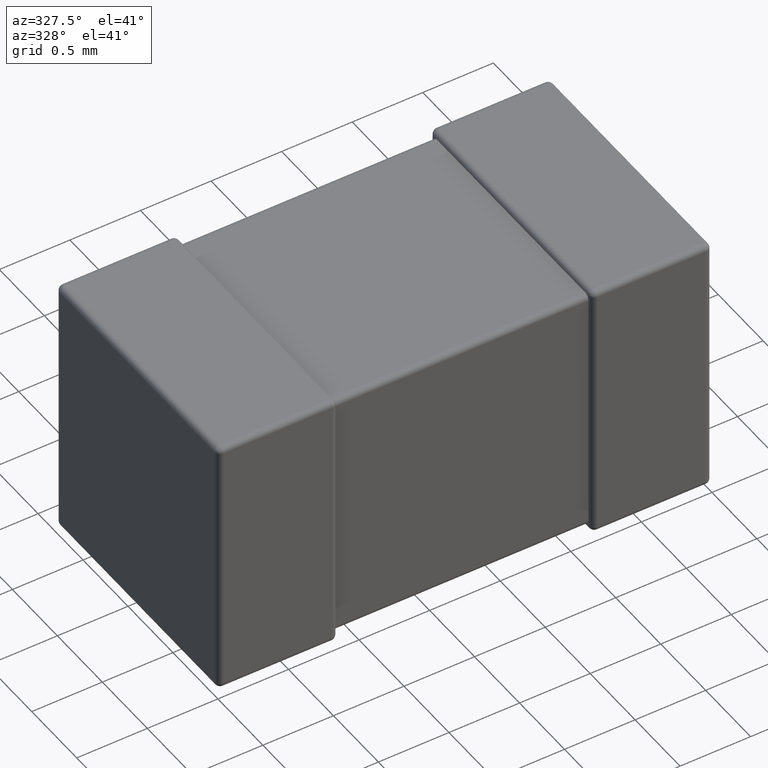
[diagram: clean part render]
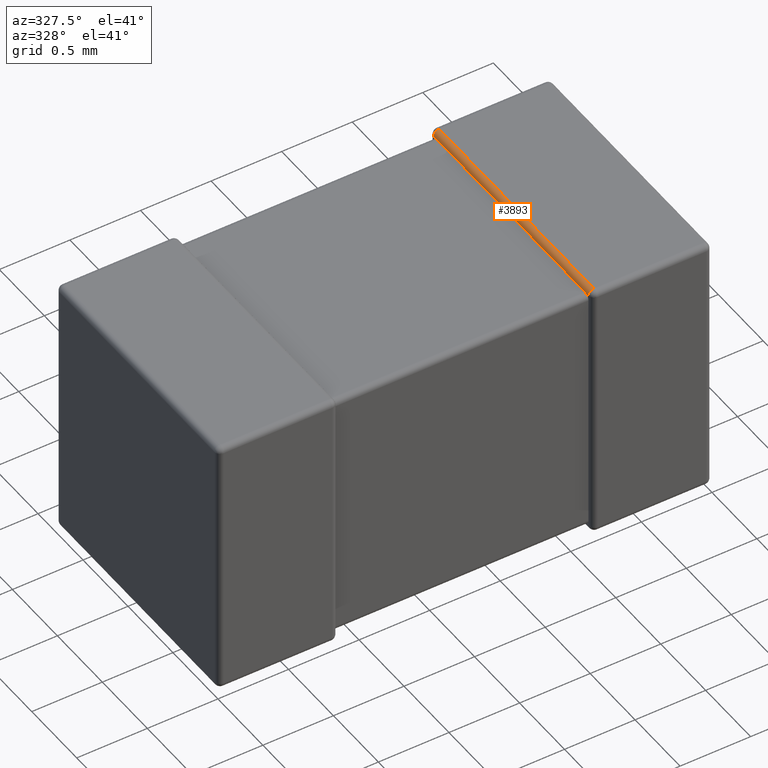
[diagram: same view with one face highlighted and labeled with its STEP entity id]
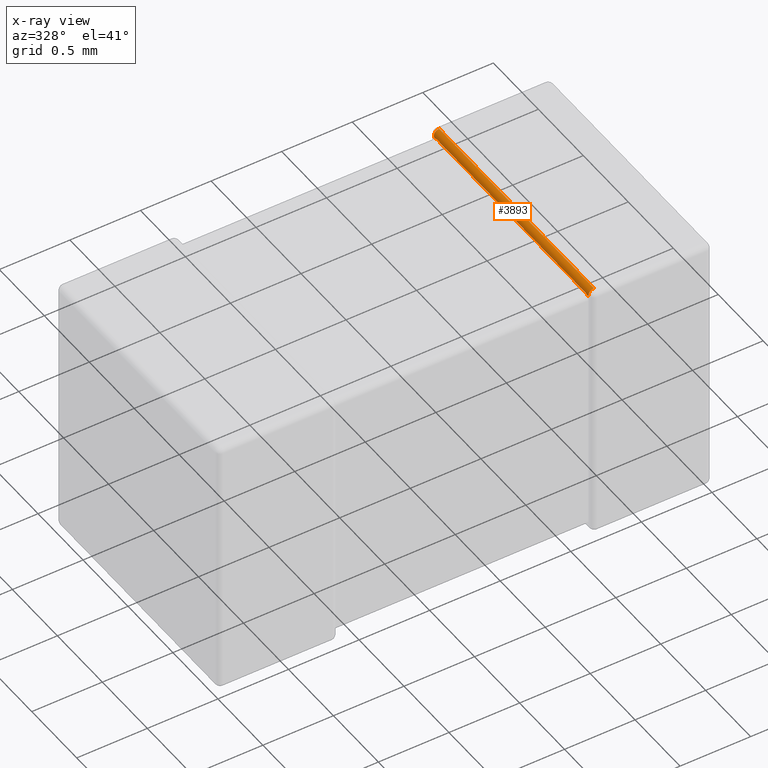
[diagram: x-ray of the same camera — body ghosted, the highlighted face saturated]
A machine part, auxiliary view. The second image highlights one B-rep face of the part: STEP entity #3893.
The next image is the same camera in x-ray: the body ghosted, the highlighted face saturated — about 0% of this face is hidden behind the body in this view.
In plain terms, the highlighted cylindrical surface (edge-blend (fillet) strip) has radius 0.0395 mm, axis along (-0, 1, 0).
Its self-contained STEP definition (entity closure, byte-faithful):
#166 = CARTESIAN_POINT ( 'NONE',  ( 2.650000000000000400, 0.07903999999999988800, -0.03951999999999991600 ) ) ;
#178 = EDGE_CURVE ( 'NONE', #1669, #402, #2656, .T. ) ;
#368 = EDGE_CURVE ( 'NONE', #4182, #527, #3213, .T. ) ;
#402 = VERTEX_POINT ( 'NONE', #546 ) ;
#527 = VERTEX_POINT ( 'NONE', #1684 ) ;
#529 = EDGE_CURVE ( 'NONE', #1669, #774, #3092, .T. ) ;
#546 = CARTESIAN_POINT ( 'NONE',  ( 2.651733143372243500, 0.05109514000750760300, -0.05109514000750752000 ) ) ;
#565 = CARTESIAN_POINT ( 'NONE',  ( 2.651733143372243500, 1.748904859992492600, -0.05109514000750747100 ) ) ;
#609 = EDGE_CURVE ( 'NONE', #4046, #3303, #2062, .T. ) ;
#610 = VERTEX_POINT ( 'NONE', #3993 ) ;
#758 = AXIS2_PLACEMENT_3D ( 'NONE', #4248, #3507, #2788 ) ;
#774 = VERTEX_POINT ( 'NONE', #4472 ) ;
#807 = AXIS2_PLACEMENT_3D ( 'NONE', #4034, #2935, #2608 ) ;
#882 = CARTESIAN_POINT ( 'NONE',  ( 2.650000000000000400, 0.07465616766269360400, -0.03951999999999991600 ) ) ;
#922 = CIRCLE ( 'NONE', #807, 0.03952000000000000000 ) ;
#923 = CARTESIAN_POINT ( 'NONE',  ( 2.650000000000000400, 0.07903999999999988800, -0.03951999999999991600 ) ) ;
#956 = CARTESIAN_POINT ( 'NONE',  ( 2.651733143372243500, 0.05109514000750760300, -0.05109514000750752000 ) ) ;
#1034 = CARTESIAN_POINT ( 'NONE',  ( 2.650000000000000400, 0.0000000000000000000, -0.03951999999999991600 ) ) ;
#1165 = CARTESIAN_POINT ( 'NONE',  ( 2.649999999999999900, 0.04345027698197009800, -0.04345027698197005700 ) ) ;
#1172 = CARTESIAN_POINT ( 'NONE',  ( 2.689519999999999900, 0.0000000000000000000, 0.0000000000000000000 ) ) ;
#1223 = CARTESIAN_POINT ( 'NONE',  ( 2.651733143372243500, 0.05109514000750760300, -0.05109514000750752000 ) ) ;
#1300 = CARTESIAN_POINT ( 'NONE',  ( 2.651136953244996900, 0.05333424870292673100, -0.04898256733341729800 ) ) ;
#1309 = CARTESIAN_POINT ( 'NONE',  ( 2.689519999999999900, 1.800000000000000000, -0.03951999999999991600 ) ) ;
#1336 = CARTESIAN_POINT ( 'NONE',  ( 2.650442899009865600, 1.742605058232455000, -0.04571625849835596300 ) ) ;
#1486 = VECTOR ( 'NONE', #2703, 1000.000000000000000 ) ;
#1568 = ORIENTED_EDGE ( 'NONE', *, *, #178, .F. ) ;
#1591 = B_SPLINE_CURVE_WITH_KNOTS ( 'NONE', 3,
 ( #2032, #3087, #1336, #3818, #3117, #3103, #2048, #4206, #3440, #2350 ),
 .UNSPECIFIED., .F., .F.,
 ( 4, 3, 3, 4 ),
 ( 0.0000000000000000000, 1.243918885754346200E-005, 2.481276825204969700E-005, 3.092983972412793500E-005 ),
 .UNSPECIFIED. ) ;
#1616 = CARTESIAN_POINT ( 'NONE',  ( 2.650000000000000400, 1.760480000000000000, -0.03951999999999991600 ) ) ;
#1656 = CARTESIAN_POINT ( 'NONE',  ( 2.650000000000000400, 1.760480000000000000, -0.03951999999999991600 ) ) ;
#1663 = CARTESIAN_POINT ( 'NONE',  ( 2.650581991896165900, 1.752662775296770700, -0.04733722470322917300 ) ) ;
#1669 = VERTEX_POINT ( 'NONE', #3337 ) ;
#1684 = CARTESIAN_POINT ( 'NONE',  ( 2.651733143372243500, 1.748904859992492600, -0.05109514000750747100 ) ) ;
#1807 = EDGE_CURVE ( 'NONE', #610, #774, #3287, .T. ) ;
#1839 = EDGE_CURVE ( 'NONE', #527, #3303, #1591, .T. ) ;
#1932 = CARTESIAN_POINT ( 'NONE',  ( 2.650581991896165900, 0.04733722470322923600, -0.04733722470322919400 ) ) ;
#1993 = ORIENTED_EDGE ( 'NONE', *, *, #609, .F. ) ;
#2032 = CARTESIAN_POINT ( 'NONE',  ( 2.651733143372243500, 1.748904859992492600, -0.05109514000750747100 ) ) ;
#2048 = CARTESIAN_POINT ( 'NONE',  ( 2.650002967756881900, 1.727128130329209600, -0.04000431673145842700 ) ) ;
#2062 = LINE ( 'NONE', #1034, #3305 ) ;
#2267 = ORIENTED_EDGE ( 'NONE', *, *, #1807, .F. ) ;
#2350 = CARTESIAN_POINT ( 'NONE',  ( 2.650000000000000400, 1.720959999999999600, -0.03951999999999991600 ) ) ;
#2457 = CYLINDRICAL_SURFACE ( 'NONE', #4625, 0.03952000000000000000 ) ;
#2608 = DIRECTION ( 'NONE',  ( 0.0000000000000000000, 0.0000000000000000000, 1.000000000000000000 ) ) ;
#2656 =( BOUNDED_CURVE ( )  B_SPLINE_CURVE ( 3, ( #3003, #1165, #1932, #1223 ),
 .UNSPECIFIED., .F., .T. ) 
 B_SPLINE_CURVE_WITH_KNOTS ( ( 4, 4 ),
 ( 4.712388980384688800, 5.009640341705893900 ),
 .UNSPECIFIED. ) 
 CURVE ( )  GEOMETRIC_REPRESENTATION_ITEM ( )  RATIONAL_B_SPLINE_CURVE ( ( 1.000000000000000000, 0.9926503465430338600, 0.9926503465430338600, 1.000000000000000000 ) ) 
 REPRESENTATION_ITEM ( '' )  );
#2680 = EDGE_CURVE ( 'NONE', #4046, #402, #4055, .T. ) ;
#2697 = FACE_OUTER_BOUND ( 'NONE', #4382, .T. ) ;
#2703 = DIRECTION ( 'NONE',  ( -0.0000000000000000000, -1.000000000000000000, -0.0000000000000000000 ) ) ;
#2725 = CARTESIAN_POINT ( 'NONE',  ( 2.650331769745486500, 0.05796412205142651600, -0.04532732105865167100 ) ) ;
#2788 = DIRECTION ( 'NONE',  ( 0.0000000000000000000, 0.0000000000000000000, -1.000000000000000000 ) ) ;
#2935 = DIRECTION ( 'NONE',  ( 0.0000000000000000000, 1.000000000000000000, -0.0000000000000000000 ) ) ;
#3003 = CARTESIAN_POINT ( 'NONE',  ( 2.649999999999999900, 0.03951999999999991600, -0.03951999999999991600 ) ) ;
#3087 = CARTESIAN_POINT ( 'NONE',  ( 2.650855364892457100, 1.746039366396293400, -0.04822964641130842600 ) ) ;
#3092 = CIRCLE ( 'NONE', #758, 0.03952000000000000000 ) ;
#3096 = CARTESIAN_POINT ( 'NONE',  ( 2.650140473378203700, 0.06192711709336555500, -0.04314804427749478100 ) ) ;
#3103 = CARTESIAN_POINT ( 'NONE',  ( 2.650010872113068800, 1.731209722374553700, -0.04064925975738556400 ) ) ;
#3117 = CARTESIAN_POINT ( 'NONE',  ( 2.650030283367744500, 1.735239425584280700, -0.04195952811634217500 ) ) ;
#3161 = ORIENTED_EDGE ( 'NONE', *, *, #2680, .T. ) ;
#3213 =( BOUNDED_CURVE ( )  B_SPLINE_CURVE ( 3, ( #1616, #3464, #1663, #565 ),
 .UNSPECIFIED., .F., .F. ) 
 B_SPLINE_CURVE_WITH_KNOTS ( ( 4, 4 ),
 ( 1.570796326794896600, 1.868047688116099700 ),
 .UNSPECIFIED. ) 
 CURVE ( )  GEOMETRIC_REPRESENTATION_ITEM ( )  RATIONAL_B_SPLINE_CURVE ( ( 1.000000000000000000, 0.9926503465430338600, 0.9926503465430338600, 1.000000000000000000 ) ) 
 REPRESENTATION_ITEM ( '' )  );
#3287 = LINE ( 'NONE', #1172, #1486 ) ;
#3303 = VERTEX_POINT ( 'NONE', #3403 ) ;
#3305 = VECTOR ( 'NONE', #3629, 1000.000000000000000 ) ;
#3337 = CARTESIAN_POINT ( 'NONE',  ( 2.649999999999999900, 0.03951999999999991600, -0.03951999999999991600 ) ) ;
#3403 = CARTESIAN_POINT ( 'NONE',  ( 2.650000000000000400, 1.720959999999999600, -0.03951999999999991600 ) ) ;
#3432 = CARTESIAN_POINT ( 'NONE',  ( 2.650060628212611600, 0.06607196931952596900, -0.04170823630913893900 ) ) ;
#3440 = CARTESIAN_POINT ( 'NONE',  ( 2.649999999999937300, 1.723022371969415800, -0.03951999999999632200 ) ) ;
#3451 = CARTESIAN_POINT ( 'NONE',  ( 2.650925292708250900, 0.05455131472403324700, -0.04802170389182123400 ) ) ;
#3458 = DIRECTION ( 'NONE',  ( 0.0000000000000000000, 0.0000000000000000000, 1.000000000000000000 ) ) ;
#3464 = CARTESIAN_POINT ( 'NONE',  ( 2.649999999999999900, 1.756549723018029800, -0.04345027698197007100 ) ) ;
#3507 = DIRECTION ( 'NONE',  ( -0.0000000000000000000, 1.000000000000000000, -0.0000000000000000000 ) ) ;
#3557 = ORIENTED_EDGE ( 'NONE', *, *, #368, .T. ) ;
#3590 = EDGE_CURVE ( 'NONE', #4182, #610, #922, .T. ) ;
#3629 = DIRECTION ( 'NONE',  ( -0.0000000000000000000, 1.000000000000000000, -0.0000000000000000000 ) ) ;
#3713 = ORIENTED_EDGE ( 'NONE', *, *, #3590, .F. ) ;
#3719 = ORIENTED_EDGE ( 'NONE', *, *, #1839, .T. ) ;
#3818 = CARTESIAN_POINT ( 'NONE',  ( 2.650236238407553300, 1.738915944383889500, -0.04383468134950801300 ) ) ;
#3893 = ADVANCED_FACE ( 'NONE', ( #2697 ), #2457, .T. ) ;
#3937 = ORIENTED_EDGE ( 'NONE', *, *, #529, .T. ) ;
#3993 = CARTESIAN_POINT ( 'NONE',  ( 2.689519999999999900, 1.760480000000000000, 0.0000000000000000000 ) ) ;
#4034 = CARTESIAN_POINT ( 'NONE',  ( 2.689519999999999900, 1.760480000000000000, -0.03951999999999991600 ) ) ;
#4046 = VERTEX_POINT ( 'NONE', #166 ) ;
#4055 = B_SPLINE_CURVE_WITH_KNOTS ( 'NONE', 3,
 ( #923, #882, #4493, #3432, #3096, #2725, #3451, #1300, #4151, #956 ),
 .UNSPECIFIED., .F., .F.,
 ( 4, 3, 3, 4 ),
 ( 2.793925047926170300E-020, 1.315149701192688600E-005, 2.633015284244864500E-005, 3.096473829575125300E-005 ),
 .UNSPECIFIED. ) ;
#4151 = CARTESIAN_POINT ( 'NONE',  ( 2.651401832367206600, 0.05217669940338194600, -0.05001358061144903900 ) ) ;
#4182 = VERTEX_POINT ( 'NONE', #1656 ) ;
#4206 = CARTESIAN_POINT ( 'NONE',  ( 2.649999022748232000, 1.725091036409824000, -0.03968243019751018000 ) ) ;
#4248 = CARTESIAN_POINT ( 'NONE',  ( 2.689519999999999900, 0.03952000000000000000, -0.03952000000000000000 ) ) ;
#4382 = EDGE_LOOP ( 'NONE', ( #3937, #2267, #3713, #3557, #3719, #1993, #3161, #1568 ) ) ;
#4472 = CARTESIAN_POINT ( 'NONE',  ( 2.689519999999999900, 0.03952000000000000000, 0.0000000000000000000 ) ) ;
#4493 = CARTESIAN_POINT ( 'NONE',  ( 2.649980868571750300, 0.07021238186081343900, -0.04026997056552555900 ) ) ;
#4602 = DIRECTION ( 'NONE',  ( -0.0000000000000000000, 1.000000000000000000, 0.0000000000000000000 ) ) ;
#4625 = AXIS2_PLACEMENT_3D ( 'NONE', #1309, #4602, #3458 ) ;